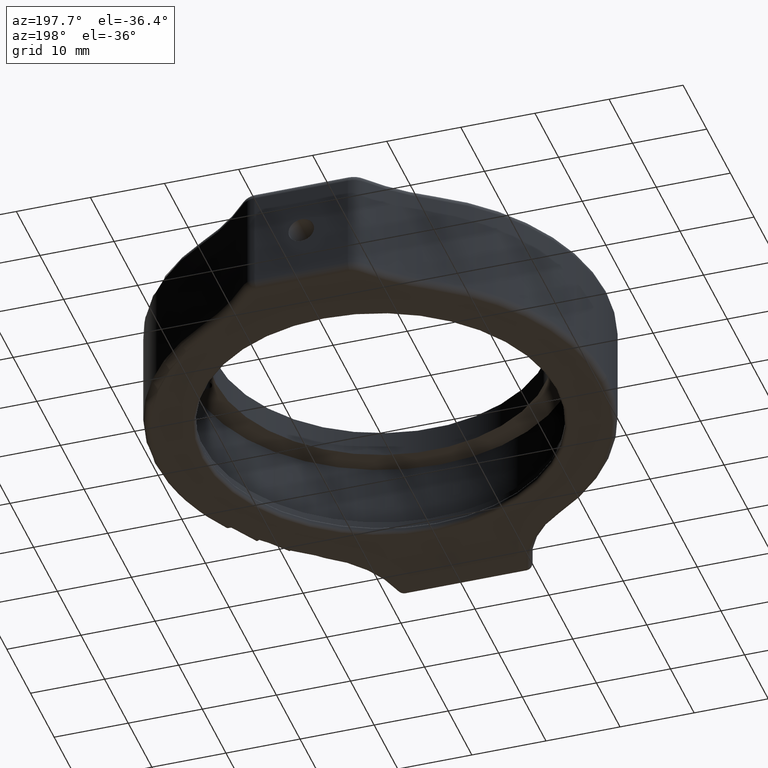
[diagram: clean part render]
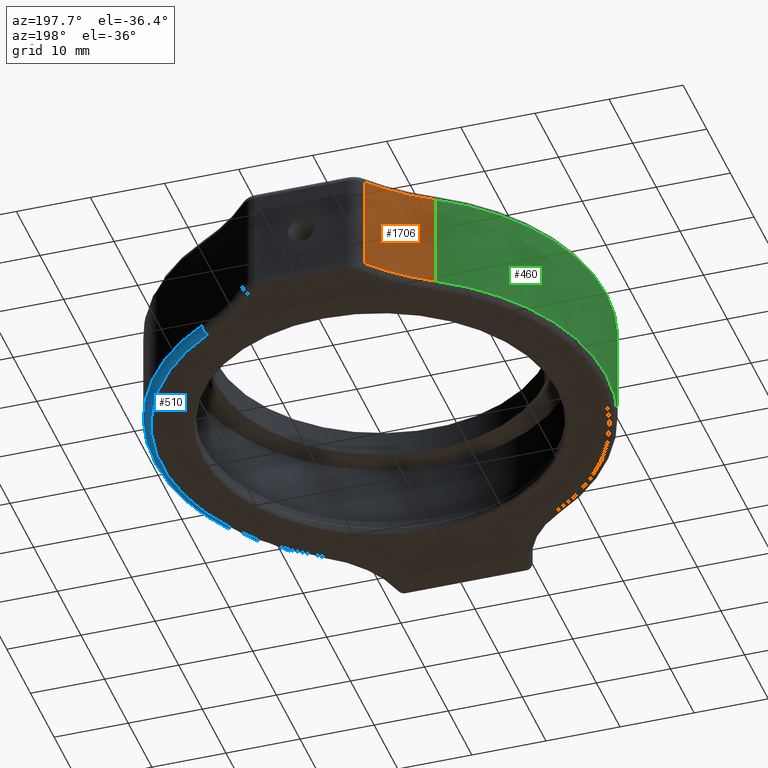
[diagram: same view with three faces highlighted in distinct colors, each labeled with its STEP entity id]
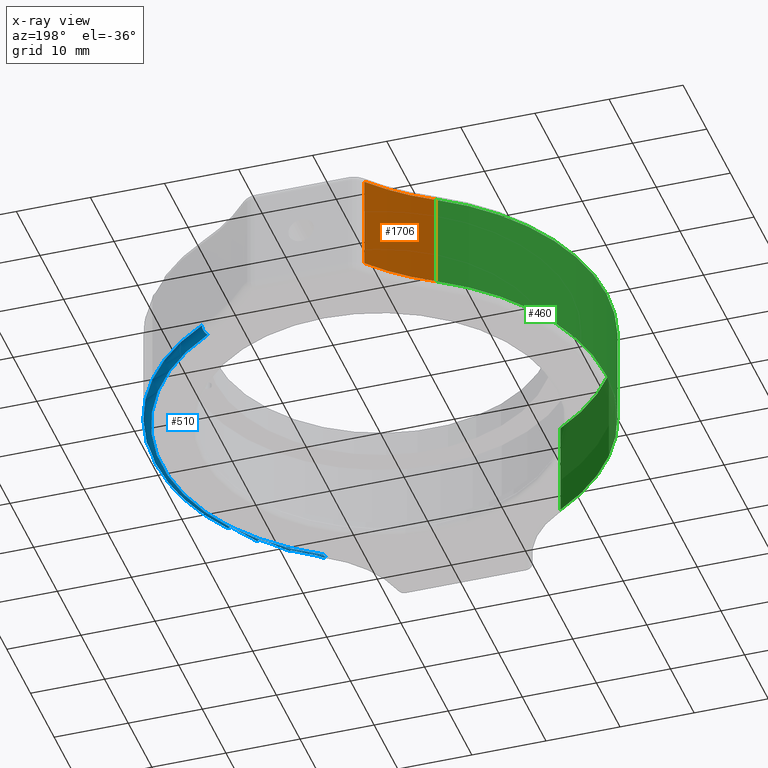
[diagram: x-ray of the same camera — body ghosted, the three highlighted faces saturated]
A machine part, auxiliary view with three faces highlighted in distinct colors.
The next image is the same camera in x-ray (body ghosted, the three faces saturated) — at least one of them is partly hidden behind the body in this view.
Their STEP definitions:

[orange] entity #1706 — the highlighted cylindrical surface (partial cylindrical patch) has radius 30 mm, axis along (-0, 0, 1).
#20 = CARTESIAN_POINT ( 'NONE',  ( -15.77175183813596800, 26.10559028170512300, -15.00000000000000000 ) ) ;
#108 = ORIENTED_EDGE ( 'NONE', *, *, #1074, .T. ) ;
#129 = AXIS2_PLACEMENT_3D ( 'NONE', #1869, #1000, #2196 ) ;
#149 = EDGE_CURVE ( 'NONE', #1851, #498, #1894, .T. ) ;
#464 = ORIENTED_EDGE ( 'NONE', *, *, #474, .T. ) ;
#474 = EDGE_CURVE ( 'NONE', #817, #1451, #1875, .T. ) ;
#498 = VERTEX_POINT ( 'NONE', #580 ) ;
#580 = CARTESIAN_POINT ( 'NONE',  ( -8.220810579183700300, 32.59870923592220000, -1.000000000000000900 ) ) ;
#581 = CIRCLE ( 'NONE', #896, 30.00000000000000000 ) ;
#605 = CIRCLE ( 'NONE', #129, 30.00000000000000000 ) ;
#694 = VECTOR ( 'NONE', #1240, 1000.000000000000000 ) ;
#718 = DIRECTION ( 'NONE',  ( -0.0000000000000000000, 0.0000000000000000000, 1.000000000000000000 ) ) ;
#817 = VERTEX_POINT ( 'NONE', #1265 ) ;
#896 = AXIS2_PLACEMENT_3D ( 'NONE', #1001, #1341, #1861 ) ;
#1000 = DIRECTION ( 'NONE',  ( -0.0000000000000000000, -0.0000000000000000000, 1.000000000000000000 ) ) ;
#1001 = CARTESIAN_POINT ( 'NONE',  ( -31.28495036745000800, 51.78322006698886100, -13.99999999999999800 ) ) ;
#1074 = EDGE_CURVE ( 'NONE', #1851, #817, #581, .T. ) ;
#1175 = CARTESIAN_POINT ( 'NONE',  ( -8.220810579183700300, 32.59870923592220000, -15.00000000000000000 ) ) ;
#1190 = EDGE_LOOP ( 'NONE', ( #2051, #108, #464, #1770 ) ) ;
#1193 = FACE_OUTER_BOUND ( 'NONE', #1190, .T. ) ;
#1240 = DIRECTION ( 'NONE',  ( -0.0000000000000000000, 0.0000000000000000000, 1.000000000000000000 ) ) ;
#1265 = CARTESIAN_POINT ( 'NONE',  ( -15.77175183813596800, 26.10559028170512300, -13.99999999999999800 ) ) ;
#1298 = CYLINDRICAL_SURFACE ( 'NONE', #2238, 30.00000000000000000 ) ;
#1341 = DIRECTION ( 'NONE',  ( 0.0000000000000000000, 0.0000000000000000000, -1.000000000000000000 ) ) ;
#1451 = VERTEX_POINT ( 'NONE', #2177 ) ;
#1593 = VECTOR ( 'NONE', #1879, 1000.000000000000000 ) ;
#1706 = ADVANCED_FACE ( 'NONE', ( #1193 ), #1298, .F. ) ;
#1770 = ORIENTED_EDGE ( 'NONE', *, *, #2023, .T. ) ;
#1851 = VERTEX_POINT ( 'NONE', #2008 ) ;
#1861 = DIRECTION ( 'NONE',  ( -1.000000000000000000, 6.938893903907228400E-016, 0.0000000000000000000 ) ) ;
#1869 = CARTESIAN_POINT ( 'NONE',  ( -31.28495036745000800, 51.78322006698886100, -1.000000000000000900 ) ) ;
#1875 = LINE ( 'NONE', #20, #694 ) ;
#1879 = DIRECTION ( 'NONE',  ( -0.0000000000000000000, 0.0000000000000000000, 1.000000000000000000 ) ) ;
#1894 = LINE ( 'NONE', #1175, #1593 ) ;
#1907 = CARTESIAN_POINT ( 'NONE',  ( -31.28495036745000800, 51.78322006698886100, -15.00000000000000000 ) ) ;
#1946 = DIRECTION ( 'NONE',  ( 1.000000000000000000, -6.938893903907228400E-016, 0.0000000000000000000 ) ) ;
#2008 = CARTESIAN_POINT ( 'NONE',  ( -8.220810579183700300, 32.59870923592220000, -13.99999999999999800 ) ) ;
#2023 = EDGE_CURVE ( 'NONE', #1451, #498, #605, .T. ) ;
#2051 = ORIENTED_EDGE ( 'NONE', *, *, #149, .F. ) ;
#2177 = CARTESIAN_POINT ( 'NONE',  ( -15.77175183813596800, 26.10559028170512300, -1.000000000000000900 ) ) ;
#2196 = DIRECTION ( 'NONE',  ( -1.000000000000000000, 6.938893903907228400E-016, 0.0000000000000000000 ) ) ;
#2238 = AXIS2_PLACEMENT_3D ( 'NONE', #1907, #718, #1946 ) ;

[blue] entity #510 — the highlighted toroidal blend (fillet) surface has major radius 29.5 mm and minor (blend) radius 1 mm.
#192 = EDGE_CURVE ( 'NONE', #1574, #391, #2234, .T. ) ;
#391 = VERTEX_POINT ( 'NONE', #1611 ) ;
#420 = CIRCLE ( 'NONE', #2013, 29.50000000000000000 ) ;
#448 = CARTESIAN_POINT ( 'NONE',  ( 0.0000000000000000000, 0.0000000000000000000, -13.99999999999999800 ) ) ;
#457 = FACE_OUTER_BOUND ( 'NONE', #621, .T. ) ;
#510 = ADVANCED_FACE ( 'NONE', ( #457 ), #1525, .T. ) ;
#549 = VERTEX_POINT ( 'NONE', #1806 ) ;
#592 = CARTESIAN_POINT ( 'NONE',  ( 15.25464522049211000, 25.24966928886229700, -15.00000000000000000 ) ) ;
#621 = EDGE_LOOP ( 'NONE', ( #1330, #1738, #653, #1201, #2121 ) ) ;
#637 = CIRCLE ( 'NONE', #1910, 30.50000000000000000 ) ;
#653 = ORIENTED_EDGE ( 'NONE', *, *, #192, .F. ) ;
#654 = EDGE_CURVE ( 'NONE', #901, #1698, #1149, .T. ) ;
#704 = AXIS2_PLACEMENT_3D ( 'NONE', #1709, #1362, #2043 ) ;
#793 = EDGE_CURVE ( 'NONE', #549, #1574, #2195, .T. ) ;
#819 = DIRECTION ( 'NONE',  ( -1.000000000000000000, 7.771561172376096800E-016, 0.0000000000000000000 ) ) ;
#822 = AXIS2_PLACEMENT_3D ( 'NONE', #1264, #2141, #1115 ) ;
#841 = DIRECTION ( 'NONE',  ( 0.8559209928427905500, -0.5171066176438006100, -0.0000000000000000000 ) ) ;
#891 = DIRECTION ( 'NONE',  ( -0.5237043442478656100, 0.8519000879304528000, 0.0000000000000000000 ) ) ;
#901 = VERTEX_POINT ( 'NONE', #592 ) ;
#977 = DIRECTION ( 'NONE',  ( 0.0000000000000000000, 0.0000000000000000000, -1.000000000000000000 ) ) ;
#1115 = DIRECTION ( 'NONE',  ( -1.000000000000000000, 7.771561172376096800E-016, 0.0000000000000000000 ) ) ;
#1149 = CIRCLE ( 'NONE', #1986, 0.9999999999999987800 ) ;
#1173 = CARTESIAN_POINT ( 'NONE',  ( 0.0000000000000000000, 0.0000000000000000000, -15.00000000000000000 ) ) ;
#1201 = ORIENTED_EDGE ( 'NONE', *, *, #793, .F. ) ;
#1209 = DIRECTION ( 'NONE',  ( -0.5171066176437993900, -0.8559209928427912200, 0.0000000000000000000 ) ) ;
#1264 = CARTESIAN_POINT ( 'NONE',  ( 0.0000000000000000000, 0.0000000000000000000, -13.99999999999999800 ) ) ;
#1330 = ORIENTED_EDGE ( 'NONE', *, *, #654, .T. ) ;
#1362 = DIRECTION ( 'NONE',  ( -0.0000000000000000000, -0.0000000000000000000, 1.000000000000000000 ) ) ;
#1430 = DIRECTION ( 'NONE',  ( -0.8519000879304526900, -0.5237043442478657200, 0.0000000000000000000 ) ) ;
#1525 = TOROIDAL_SURFACE ( 'NONE', #822, 29.50000000000000000, 1.000000000000000000 ) ;
#1556 = CARTESIAN_POINT ( 'NONE',  ( 15.77175183813591300, 26.10559028170506600, -13.99999999999999800 ) ) ;
#1562 = CARTESIAN_POINT ( 'NONE',  ( 15.97298249955993800, -25.98295268187881400, -13.99999999999999800 ) ) ;
#1574 = VERTEX_POINT ( 'NONE', #1562 ) ;
#1598 = CARTESIAN_POINT ( 'NONE',  ( 15.44927815531207700, -25.13105259394834700, -13.99999999999999800 ) ) ;
#1611 = CARTESIAN_POINT ( 'NONE',  ( 30.50000000000000000, -2.370326157574709500E-014, -13.99999999999999800 ) ) ;
#1698 = VERTEX_POINT ( 'NONE', #1556 ) ;
#1709 = CARTESIAN_POINT ( 'NONE',  ( 0.0000000000000000000, 0.0000000000000000000, -13.99999999999999800 ) ) ;
#1738 = ORIENTED_EDGE ( 'NONE', *, *, #2248, .F. ) ;
#1806 = CARTESIAN_POINT ( 'NONE',  ( 15.44927815531207700, -25.13105259394834700, -15.00000000000000000 ) ) ;
#1843 = DIRECTION ( 'NONE',  ( -1.000000000000000000, 7.771561172376096800E-016, 0.0000000000000000000 ) ) ;
#1905 = EDGE_CURVE ( 'NONE', #901, #549, #420, .T. ) ;
#1910 = AXIS2_PLACEMENT_3D ( 'NONE', #448, #2147, #1843 ) ;
#1986 = AXIS2_PLACEMENT_3D ( 'NONE', #2231, #841, #1209 ) ;
#2013 = AXIS2_PLACEMENT_3D ( 'NONE', #1173, #977, #819 ) ;
#2020 = AXIS2_PLACEMENT_3D ( 'NONE', #1598, #1430, #891 ) ;
#2043 = DIRECTION ( 'NONE',  ( -1.000000000000000000, 2.553512956637860000E-015, 0.0000000000000000000 ) ) ;
#2121 = ORIENTED_EDGE ( 'NONE', *, *, #1905, .F. ) ;
#2141 = DIRECTION ( 'NONE',  ( 0.0000000000000000000, 0.0000000000000000000, -1.000000000000000000 ) ) ;
#2147 = DIRECTION ( 'NONE',  ( -0.0000000000000000000, -0.0000000000000000000, 1.000000000000000000 ) ) ;
#2195 = CIRCLE ( 'NONE', #2020, 1.000000000000001100 ) ;
#2231 = CARTESIAN_POINT ( 'NONE',  ( 15.25464522049211000, 25.24966928886229700, -13.99999999999999800 ) ) ;
#2234 = CIRCLE ( 'NONE', #704, 30.50000000000000000 ) ;
#2248 = EDGE_CURVE ( 'NONE', #391, #1698, #637, .T. ) ;

[green] entity #460 — the highlighted cylindrical surface (partial cylindrical patch) has radius 30.5 mm, axis along (-0, 0, 1).
#20 = CARTESIAN_POINT ( 'NONE',  ( -15.77175183813596800, 26.10559028170512300, -15.00000000000000000 ) ) ;
#64 = DIRECTION ( 'NONE',  ( -1.000000000000000000, 7.771561172376096800E-016, 0.0000000000000000000 ) ) ;
#72 = CIRCLE ( 'NONE', #2244, 30.50000000000000000 ) ;
#86 = ORIENTED_EDGE ( 'NONE', *, *, #474, .F. ) ;
#119 = CARTESIAN_POINT ( 'NONE',  ( -15.97298249955989000, -25.98295268187876800, -15.00000000000000000 ) ) ;
#122 = CIRCLE ( 'NONE', #278, 30.50000000000000000 ) ;
#137 = EDGE_CURVE ( 'NONE', #817, #982, #314, .T. ) ;
#144 = DIRECTION ( 'NONE',  ( -1.000000000000000000, -1.110223024625155600E-016, 0.0000000000000000000 ) ) ;
#227 = CARTESIAN_POINT ( 'NONE',  ( -30.50000000000000000, 2.370326157574709500E-014, -13.99999999999999800 ) ) ;
#234 = CARTESIAN_POINT ( 'NONE',  ( 0.0000000000000000000, 0.0000000000000000000, -1.000000000000000900 ) ) ;
#271 = DIRECTION ( 'NONE',  ( -0.0000000000000000000, 0.0000000000000000000, 1.000000000000000000 ) ) ;
#278 = AXIS2_PLACEMENT_3D ( 'NONE', #1542, #491, #1027 ) ;
#314 = CIRCLE ( 'NONE', #2146, 30.50000000000000000 ) ;
#427 = AXIS2_PLACEMENT_3D ( 'NONE', #2092, #1063, #894 ) ;
#460 = ADVANCED_FACE ( 'NONE', ( #1316 ), #1171, .T. ) ;
#474 = EDGE_CURVE ( 'NONE', #817, #1451, #1875, .T. ) ;
#491 = DIRECTION ( 'NONE',  ( 0.0000000000000000000, 0.0000000000000000000, -1.000000000000000000 ) ) ;
#561 = VERTEX_POINT ( 'NONE', #2132 ) ;
#694 = VECTOR ( 'NONE', #1240, 1000.000000000000000 ) ;
#731 = DIRECTION ( 'NONE',  ( 1.000000000000000000, -7.771561172376096800E-016, 0.0000000000000000000 ) ) ;
#817 = VERTEX_POINT ( 'NONE', #1265 ) ;
#877 = EDGE_CURVE ( 'NONE', #2030, #1015, #72, .T. ) ;
#894 = DIRECTION ( 'NONE',  ( -1.000000000000000000, 7.771561172376096800E-016, 0.0000000000000000000 ) ) ;
#907 = DIRECTION ( 'NONE',  ( -0.0000000000000000000, 0.0000000000000000000, 1.000000000000000000 ) ) ;
#981 = CARTESIAN_POINT ( 'NONE',  ( -15.97298249955989000, -25.98295268187876800, -1.000000000000000900 ) ) ;
#982 = VERTEX_POINT ( 'NONE', #227 ) ;
#992 = DIRECTION ( 'NONE',  ( -0.0000000000000000000, -0.0000000000000000000, 1.000000000000000000 ) ) ;
#1015 = VERTEX_POINT ( 'NONE', #1675 ) ;
#1027 = DIRECTION ( 'NONE',  ( -1.000000000000000000, 7.771561172376096800E-016, 0.0000000000000000000 ) ) ;
#1033 = VECTOR ( 'NONE', #271, 1000.000000000000000 ) ;
#1063 = DIRECTION ( 'NONE',  ( -0.0000000000000000000, -0.0000000000000000000, 1.000000000000000000 ) ) ;
#1126 = EDGE_CURVE ( 'NONE', #982, #561, #2218, .T. ) ;
#1171 = CYLINDRICAL_SURFACE ( 'NONE', #2138, 30.50000000000000000 ) ;
#1240 = DIRECTION ( 'NONE',  ( -0.0000000000000000000, 0.0000000000000000000, 1.000000000000000000 ) ) ;
#1265 = CARTESIAN_POINT ( 'NONE',  ( -15.77175183813596800, 26.10559028170512300, -13.99999999999999800 ) ) ;
#1316 = FACE_OUTER_BOUND ( 'NONE', #1317, .T. ) ;
#1317 = EDGE_LOOP ( 'NONE', ( #1768, #1963, #2144, #86, #1414, #1467 ) ) ;
#1374 = EDGE_CURVE ( 'NONE', #561, #2030, #1673, .T. ) ;
#1414 = ORIENTED_EDGE ( 'NONE', *, *, #137, .T. ) ;
#1451 = VERTEX_POINT ( 'NONE', #2177 ) ;
#1467 = ORIENTED_EDGE ( 'NONE', *, *, #1126, .T. ) ;
#1472 = DIRECTION ( 'NONE',  ( 0.0000000000000000000, 0.0000000000000000000, -1.000000000000000000 ) ) ;
#1477 = EDGE_CURVE ( 'NONE', #1015, #1451, #122, .T. ) ;
#1542 = CARTESIAN_POINT ( 'NONE',  ( 0.0000000000000000000, 0.0000000000000000000, -1.000000000000000900 ) ) ;
#1606 = CARTESIAN_POINT ( 'NONE',  ( 0.0000000000000000000, 0.0000000000000000000, -15.00000000000000000 ) ) ;
#1673 = LINE ( 'NONE', #119, #1033 ) ;
#1675 = CARTESIAN_POINT ( 'NONE',  ( -30.50000000000000000, 2.370326157574709500E-014, -1.000000000000000900 ) ) ;
#1768 = ORIENTED_EDGE ( 'NONE', *, *, #1374, .T. ) ;
#1875 = LINE ( 'NONE', #20, #694 ) ;
#1963 = ORIENTED_EDGE ( 'NONE', *, *, #877, .T. ) ;
#2030 = VERTEX_POINT ( 'NONE', #981 ) ;
#2035 = CARTESIAN_POINT ( 'NONE',  ( 0.0000000000000000000, 0.0000000000000000000, -13.99999999999999800 ) ) ;
#2092 = CARTESIAN_POINT ( 'NONE',  ( 0.0000000000000000000, 0.0000000000000000000, -13.99999999999999800 ) ) ;
#2132 = CARTESIAN_POINT ( 'NONE',  ( -15.97298249955989000, -25.98295268187876800, -13.99999999999999800 ) ) ;
#2138 = AXIS2_PLACEMENT_3D ( 'NONE', #1606, #907, #731 ) ;
#2144 = ORIENTED_EDGE ( 'NONE', *, *, #1477, .T. ) ;
#2146 = AXIS2_PLACEMENT_3D ( 'NONE', #2035, #992, #144 ) ;
#2177 = CARTESIAN_POINT ( 'NONE',  ( -15.77175183813596800, 26.10559028170512300, -1.000000000000000900 ) ) ;
#2218 = CIRCLE ( 'NONE', #427, 30.50000000000000000 ) ;
#2244 = AXIS2_PLACEMENT_3D ( 'NONE', #234, #1472, #64 ) ;